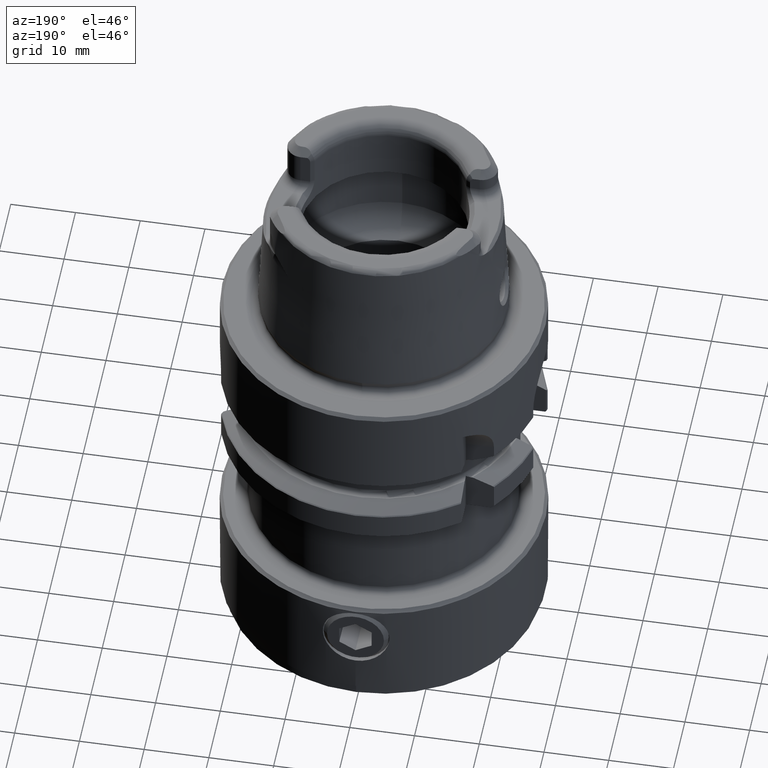
[diagram: clean part render]
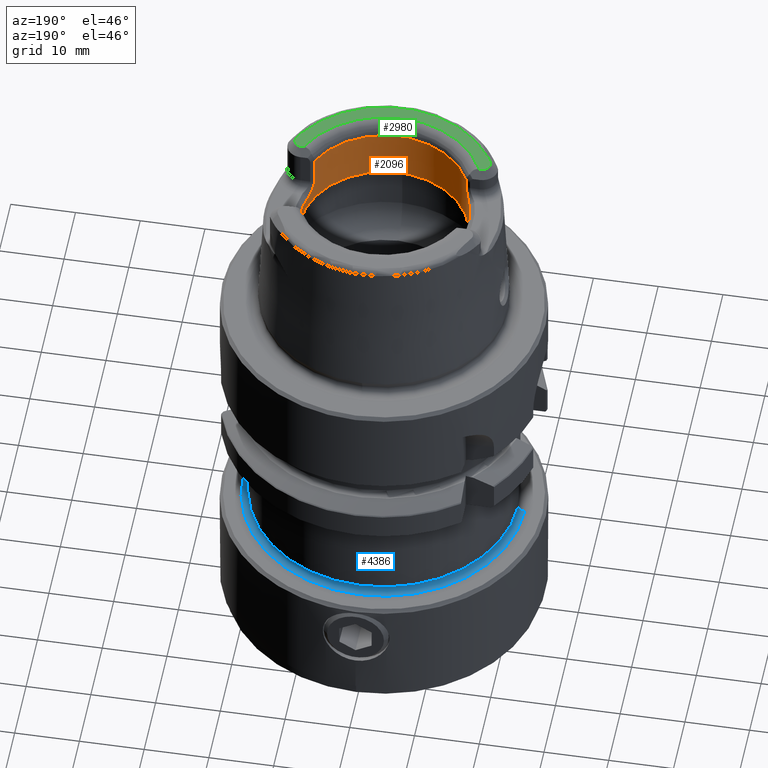
[diagram: same view with three faces highlighted in distinct colors, each labeled with its STEP entity id]
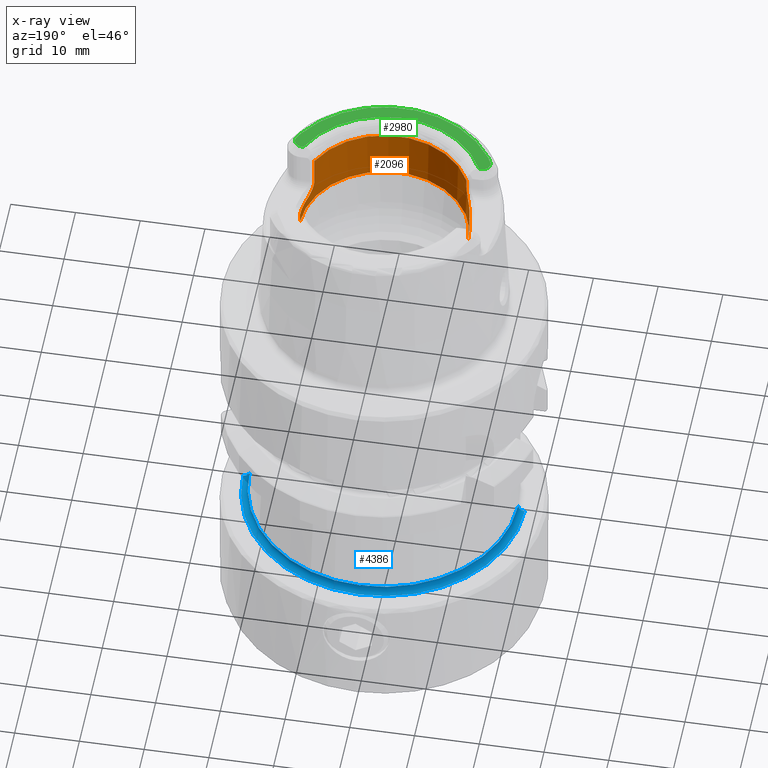
[diagram: x-ray of the same camera — body ghosted, the three highlighted faces saturated]
A machine part, auxiliary view with three faces highlighted in distinct colors.
The next image is the same camera in x-ray (body ghosted, the three faces saturated) — at least one of them is partly hidden behind the body in this view.
Their STEP definitions:

[orange] entity #2096 — the highlighted cylindrical surface (partial cylindrical patch) has radius 13.02 mm, axis along (-0, 0, -1).
#1604=VERTEX_POINT('NONE',#4595);
#1732=EDGE_CURVE('NONE',#4052,#3916,#4727,.T.);
#2036=EDGE_CURVE('NONE',#4440,#4052,#5058,.F.);
#2038=EDGE_CURVE('NONE',#2076,#4276,#5060,.F.);
#2076=VERTEX_POINT('NONE',#5103);
#2096=ADVANCED_FACE('NONE',(#5127),#5128,.F.);
#2266=EDGE_CURVE('NONE',#2396,#4276,#5312,.F.);
#2376=VERTEX_POINT('NONE',#5430);
#2396=VERTEX_POINT('NONE',#5453);
#2440=EDGE_CURVE('NONE',#2376,#2396,#5501,.T.);
#2878=VERTEX_POINT('NONE',#5981);
#3236=VERTEX_POINT('NONE',#6376);
#3252=EDGE_CURVE('NONE',#1604,#4440,#6394,.T.);
#3486=EDGE_CURVE('NONE',#3916,#2878,#6658,.F.);
#3904=EDGE_CURVE('NONE',#3236,#2376,#7125,.F.);
#3906=EDGE_CURVE('NONE',#2076,#1604,#7127,.F.);
#3916=VERTEX_POINT('NONE',#7137);
#4052=VERTEX_POINT('NONE',#7285);
#4226=EDGE_CURVE('NONE',#3236,#2878,#7472,.T.);
#4276=VERTEX_POINT('NONE',#7530);
#4440=VERTEX_POINT('NONE',#7709);
#4595=CARTESIAN_POINT('',(11.7303798066063,-5.64965393566404,18.7));
#4727=LINE('',#8368,#8369);
#5058=CIRCLE('',#9298,13.02);
#5060=CIRCLE('',#9301,13.02);
#5103=CARTESIAN_POINT('',(11.7303798066063,-5.64965393566403,22.9));
#5127=FACE_OUTER_BOUND('',#9454,.T.);
#5128=CYLINDRICAL_SURFACE('',#9455,13.02);
#5312=LINE('',#9864,#9865);
#5430=CARTESIAN_POINT('',(-12.4994746450473,-3.64465822784809,19.495));
#5453=CARTESIAN_POINT('',(-11.7303798066062,-5.64965393566405,21.7));
#5501=B_SPLINE_CURVE_WITH_KNOTS('',3,(#10372,#10373,#10374,#10375,#10376,#10377,#10378,#10379,#10380,#10381,#10382,#10383,#10384,#10385),.UNSPECIFIED.,.F.,.F.,(4,2,2,2,2,2,4),(0.0,0.000422921558412076,0.000845843116824152,0.00169168623364831,0.00253752935047247,0.00296045090888454,0.00338337246729662),.UNSPECIFIED.);
#5981=CARTESIAN_POINT('',(-13.02,-1.75663999721028E-015,14.9758896893005));
#6376=CARTESIAN_POINT('',(-13.02,-1.59449013248985E-015,19.495));
#6394=B_SPLINE_CURVE_WITH_KNOTS('',3,(#12752,#12753,#12754,#12755,#12756,#12757,#12758,#12759,#12760,#12761,#12762,#12763,#12764,#12765),.UNSPECIFIED.,.F.,.F.,(4,2,2,2,2,2,4),(0.0,0.000423807483289232,0.000847614966578463,0.00127142244986769,0.00169522993315693,0.00254284489973539,0.00339045986631385),.UNSPECIFIED.);
#6658=CIRCLE('',#13512,13.02);
#7125=CIRCLE('',#14951,13.02);
#7127=LINE('',#14954,#14955);
#7137=CARTESIAN_POINT('',(13.02,0.0,14.9758896893005));
#7285=CARTESIAN_POINT('',(13.02,0.0,16.495));
#7472=LINE('',#16323,#16324);
#7530=CARTESIAN_POINT('',(-11.7303798066063,-5.64965393566405,22.9));
#7709=CARTESIAN_POINT('',(12.4994746450473,-3.64465822784809,16.495));
#8368=CARTESIAN_POINT('',(13.02,0.0,0.0));
#8369=VECTOR('',#17203,1000.0);
#9298=AXIS2_PLACEMENT_3D('',#17567,#17568,#17569);
#9301=AXIS2_PLACEMENT_3D('',#17570,#17571,#17572);
#9454=EDGE_LOOP('',(#17669,#17670,#17671,#17672,#17673,#17674,#17675,#17676,#17677,#17678));
#9455=AXIS2_PLACEMENT_3D('',#17679,#17680,#17681);
#9864=CARTESIAN_POINT('',(-11.7303798066062,-5.64965393566405,0.0));
#9865=VECTOR('',#17853,1.0);
#10372=CARTESIAN_POINT('',(-12.4994746450473,-3.64465822784809,19.495));
#10373=CARTESIAN_POINT('',(-12.4593070456915,-3.7824143241161,19.4936567960236));
#10374=CARTESIAN_POINT('',(-12.4177615075341,-3.91644627135201,19.5098225495693));
#10375=CARTESIAN_POINT('',(-12.3321732634006,-4.17814011922187,19.5718634027792));
#10376=CARTESIAN_POINT('',(-12.2876478407808,-4.30706426046742,19.6185552470368));
#10377=CARTESIAN_POINT('',(-12.155814004187,-4.67154727119188,19.7954216213728));
#10378=CARTESIAN_POINT('',(-12.0681744409088,-4.89066040015203,19.9640772672454));
#10379=CARTESIAN_POINT('',(-11.9143096413835,-5.25439047417068,20.3682773396175));
#10380=CARTESIAN_POINT('',(-11.8467727881526,-5.40243644465913,20.6087911699131));
#10381=CARTESIAN_POINT('',(-11.7775012917335,-5.55102239064021,20.9985576229875));
#10382=CARTESIAN_POINT('',(-11.7592888632587,-5.58930109453134,21.1359104563778));
#10383=CARTESIAN_POINT('',(-11.7354940104373,-5.63909049633708,21.4152879927284));
#10384=CARTESIAN_POINT('',(-11.7298158976227,-5.65082478021992,21.5567639417051));
#10385=CARTESIAN_POINT('',(-11.7303798066062,-5.64965393566405,21.7));
#12752=CARTESIAN_POINT('',(11.7303798066063,-5.64965393566404,18.7));
#12753=CARTESIAN_POINT('',(11.7297433276299,-5.65097545733889,18.5568041248561));
#12754=CARTESIAN_POINT('',(11.7354194478726,-5.63924450542508,18.415863323853));
#12755=CARTESIAN_POINT('',(11.7590104685246,-5.58988559906202,18.1384368124433));
#12756=CARTESIAN_POINT('',(11.7772218104594,-5.55161889011278,18.0005669935727));
#12757=CARTESIAN_POINT('',(11.8237103949468,-5.45190777345363,17.7391146754305));
#12758=CARTESIAN_POINT('',(11.8518878397048,-5.39067896896175,17.614849662269));
#12759=CARTESIAN_POINT('',(11.9165524937719,-5.24618354373243,17.3785688040968));
#12760=CARTESIAN_POINT('',(11.9529218981065,-5.16311967894297,17.2673680341393));
#12761=CARTESIAN_POINT('',(12.0683031862516,-4.89034202178108,16.9639334681071));
#12762=CARTESIAN_POINT('',(12.1560442176567,-4.67081891841014,16.795002034536));
#12763=CARTESIAN_POINT('',(12.330284368837,-4.18927771505042,16.56043084774));
#12764=CARTESIAN_POINT('',(12.4191476677416,-3.92014222480384,16.491636369051));
#12765=CARTESIAN_POINT('',(12.4994746450473,-3.64465822784809,16.495));
#13512=AXIS2_PLACEMENT_3D('',#19362,#19363,#19364);
#14951=AXIS2_PLACEMENT_3D('',#19958,#19959,#19960);
#14954=CARTESIAN_POINT('',(11.7303798066063,-5.64965393566403,0.0));
#14955=VECTOR('',#19961,1.0);
#16323=CARTESIAN_POINT('',(-13.02,-1.59449013248985E-015,0.0));
#16324=VECTOR('',#20293,1000.0);
#17203=DIRECTION('',(0.0,0.0,-1.0));
#17567=CARTESIAN_POINT('',(0.0,0.0,16.495));
#17568=DIRECTION('',(0.0,0.0,-1.0));
#17569=DIRECTION('',(1.0,0.0,0.0));
#17570=CARTESIAN_POINT('',(0.0,0.0,22.9));
#17571=DIRECTION('',(0.0,-0.0,1.0));
#17572=DIRECTION('',(1.0,0.0,0.0));
#17669=ORIENTED_EDGE('',*,*,#4226,.F.);
#17670=ORIENTED_EDGE('',*,*,#3904,.T.);
#17671=ORIENTED_EDGE('',*,*,#2440,.T.);
#17672=ORIENTED_EDGE('',*,*,#2266,.T.);
#17673=ORIENTED_EDGE('',*,*,#2038,.F.);
#17674=ORIENTED_EDGE('',*,*,#3906,.T.);
#17675=ORIENTED_EDGE('',*,*,#3252,.T.);
#17676=ORIENTED_EDGE('',*,*,#2036,.T.);
#17677=ORIENTED_EDGE('',*,*,#1732,.T.);
#17678=ORIENTED_EDGE('',*,*,#3486,.T.);
#17679=CARTESIAN_POINT('',(0.0,0.0,0.0));
#17680=DIRECTION('',(-0.0,0.0,-1.0));
#17681=DIRECTION('',(1.0,0.0,0.0));
#17853=DIRECTION('',(0.0,0.0,-1.0));
#19362=CARTESIAN_POINT('',(0.0,0.0,14.9758896893005));
#19363=DIRECTION('',(0.0,-0.0,1.0));
#19364=DIRECTION('',(1.0,0.0,0.0));
#19958=CARTESIAN_POINT('',(0.0,0.0,19.495));
#19959=DIRECTION('',(0.0,0.0,-1.0));
#19960=DIRECTION('',(1.0,0.0,0.0));
#19961=DIRECTION('',(0.0,-0.0,1.0));
#20293=DIRECTION('',(0.0,0.0,-1.0));

[blue] entity #4386 — the highlighted toroidal blend (fillet) surface has major radius 21.75 mm and minor (blend) radius 1 mm.
#1646=VERTEX_POINT('NONE',#4639);
#1700=EDGE_CURVE('NONE',#2602,#2188,#4694,.T.);
#1964=VERTEX_POINT('NONE',#4980);
#2188=VERTEX_POINT('NONE',#5226);
#2602=VERTEX_POINT('NONE',#5672);
#3664=EDGE_CURVE('NONE',#2602,#1646,#6860,.F.);
#4354=EDGE_CURVE('NONE',#2188,#1964,#7613,.T.);
#4356=EDGE_CURVE('NONE',#1646,#1964,#7615,.T.);
#4386=ADVANCED_FACE('NONE',(#7650),#7651,.F.);
#4639=CARTESIAN_POINT('',(-20.75,0.0,-41.0));
#4694=CIRCLE('',#8288,1.0);
#4980=CARTESIAN_POINT('',(-21.75,0.0,-42.0));
#5226=CARTESIAN_POINT('',(21.75,-2.66360678814549E-015,-42.0));
#5672=CARTESIAN_POINT('',(20.75,-2.54114210823076E-015,-41.0));
#6860=CIRCLE('',#14282,20.75);
#7613=CIRCLE('',#16749,21.75);
#7615=CIRCLE('',#16752,1.0);
#7650=FACE_OUTER_BOUND('',#16795,.T.);
#7651=TOROIDAL_SURFACE('',#16796,21.75,0.999999999999682);
#8288=AXIS2_PLACEMENT_3D('',#17177,#17178,#17179);
#14282=AXIS2_PLACEMENT_3D('',#19648,#19649,#19650);
#16749=AXIS2_PLACEMENT_3D('',#20442,#20443,#20444);
#16752=AXIS2_PLACEMENT_3D('',#20445,#20446,#20447);
#16795=EDGE_LOOP('',(#20501,#20502,#20503,#20504));
#16796=AXIS2_PLACEMENT_3D('',#20505,#20506,#20507);
#17177=CARTESIAN_POINT('',(21.75,-2.66360678814549E-015,-41.0));
#17178=DIRECTION('',(-1.22464679914735E-016,-1.0,0.0));
#17179=DIRECTION('',(-1.0,1.22464679914735E-016,0.0));
#19648=CARTESIAN_POINT('',(0.0,0.0,-41.0));
#19649=DIRECTION('',(0.0,0.0,-1.0));
#19650=DIRECTION('',(-1.0,0.0,0.0));
#20442=CARTESIAN_POINT('',(0.0,0.0,-42.0));
#20443=DIRECTION('',(0.0,0.0,1.0));
#20444=DIRECTION('',(-1.0,0.0,-0.0));
#20445=CARTESIAN_POINT('',(-21.75,0.0,-41.0));
#20446=DIRECTION('',(0.0,1.0,-0.0));
#20447=DIRECTION('',(1.0,0.0,0.0));
#20501=ORIENTED_EDGE('',*,*,#3664,.F.);
#20502=ORIENTED_EDGE('',*,*,#1700,.T.);
#20503=ORIENTED_EDGE('',*,*,#4354,.T.);
#20504=ORIENTED_EDGE('',*,*,#4356,.F.);
#20505=CARTESIAN_POINT('',(0.0,0.0,-41.0));
#20506=DIRECTION('',(0.0,0.0,1.0));
#20507=DIRECTION('',(-1.0,0.0,0.0));

[green] entity #2980 — the highlighted planar face has unit normal (0, 0, -1).
#1656=EDGE_CURVE('NONE',#4430,#3776,#4649,.F.);
#2010=VERTEX_POINT('NONE',#5032);
#2358=EDGE_CURVE('NONE',#2010,#4430,#5412,.T.);
#2476=EDGE_CURVE('NONE',#4394,#2698,#5538,.T.);
#2544=VERTEX_POINT('NONE',#5611);
#2698=VERTEX_POINT('NONE',#5780);
#2872=EDGE_CURVE('NONE',#3422,#2544,#5975,.T.);
#2980=ADVANCED_FACE('NONE',(#6086),#6087,.F.);
#3422=VERTEX_POINT('NONE',#6585);
#3438=EDGE_CURVE('NONE',#2544,#4394,#6603,.F.);
#3578=EDGE_CURVE('NONE',#3912,#3422,#6766,.F.);
#3604=EDGE_CURVE('NONE',#3912,#2010,#6792,.T.);
#3776=VERTEX_POINT('NONE',#6984);
#3912=VERTEX_POINT('NONE',#7133);
#4378=EDGE_CURVE('NONE',#3776,#2698,#7640,.T.);
#4394=VERTEX_POINT('NONE',#7659);
#4430=VERTEX_POINT('NONE',#7698);
#4649=CIRCLE('',#8179,1.22999999999999);
#5032=CARTESIAN_POINT('',(-13.5788070168185,-6.42000000000001,24.9));
#5412=LINE('',#10171,#10172);
#5538=CIRCLE('',#10435,17.0853539879373);
#5611=CARTESIAN_POINT('',(14.9317677964532,-8.2445343661398,24.9));
#5780=CARTESIAN_POINT('',(-14.4534392705564,-9.11084047415299,24.9));
#5975=CIRCLE('',#11520,1.22999999999999);
#6086=FACE_OUTER_BOUND('',#11818,.T.);
#6087=PLANE('',#11819);
#6585=CARTESIAN_POINT('',(13.855,-6.42000000000001,24.9));
#6603=LINE('',#13305,#13306);
#6766=LINE('',#13981,#13982);
#6792=CIRCLE('',#14018,15.02);
#6984=CARTESIAN_POINT('',(-14.9317677964532,-8.24453436613981,24.9));
#7133=CARTESIAN_POINT('',(13.5788070168185,-6.42,24.9));
#7640=LINE('',#16783,#16784);
#7659=CARTESIAN_POINT('',(14.4534392705564,-9.11084047415299,24.9));
#7698=CARTESIAN_POINT('',(-13.855,-6.42000000000001,24.9));
#8179=AXIS2_PLACEMENT_3D('',#17148,#17149,#17150);
#10171=CARTESIAN_POINT('',(-2.18316502115622,-6.42000000000001,24.9));
#10172=VECTOR('',#17946,1.0);
#10435=AXIS2_PLACEMENT_3D('',#18051,#18052,#18053);
#11520=AXIS2_PLACEMENT_3D('',#18522,#18523,#18524);
#11818=EDGE_LOOP('',(#18593,#18594,#18595,#18596,#18597,#18598,#18599,#18600));
#11819=AXIS2_PLACEMENT_3D('',#18601,#18602,#18603);
#13305=CARTESIAN_POINT('',(11.2220120566875,-14.9633142059378,24.9));
#13306=VECTOR('',#19271,1.0);
#13981=CARTESIAN_POINT('',(2.18316502115622,-6.42000000000001,24.9));
#13982=VECTOR('',#19529,1.0);
#14018=AXIS2_PLACEMENT_3D('',#19542,#19543,#19544);
#16783=CARTESIAN_POINT('',(-11.2220120566875,-14.9633142059378,24.9));
#16784=VECTOR('',#20478,1.0);
#17148=CARTESIAN_POINT('',(-13.855,-7.65,24.9));
#17149=DIRECTION('',(0.0,5.03205941042292E-020,-1.0));
#17150=DIRECTION('',(0.0,-1.0,-5.03205941042292E-020));
#17946=DIRECTION('',(-1.0,-2.7423076422392E-016,-1.37994549774044E-035));
#18051=CARTESIAN_POINT('',(0.0,-5.03205941042292E-020,24.9));
#18052=DIRECTION('',(0.0,5.03205941042292E-020,-1.0));
#18053=DIRECTION('',(1.0,0.0,0.0));
#18522=CARTESIAN_POINT('',(13.855,-7.65,24.9));
#18523=DIRECTION('',(0.0,5.03205941042292E-020,-1.0));
#18524=DIRECTION('',(0.0,-1.0,-5.03205941042292E-020));
#18593=ORIENTED_EDGE('',*,*,#3578,.F.);
#18594=ORIENTED_EDGE('',*,*,#3604,.T.);
#18595=ORIENTED_EDGE('',*,*,#2358,.T.);
#18596=ORIENTED_EDGE('',*,*,#1656,.T.);
#18597=ORIENTED_EDGE('',*,*,#4378,.T.);
#18598=ORIENTED_EDGE('',*,*,#2476,.F.);
#18599=ORIENTED_EDGE('',*,*,#3438,.F.);
#18600=ORIENTED_EDGE('',*,*,#2872,.F.);
#18601=CARTESIAN_POINT('',(0.0,-17.5342224597055,24.9));
#18602=DIRECTION('',(0.0,5.03205941042292E-020,-1.0));
#18603=DIRECTION('',(-1.0,0.0,0.0));
#19271=DIRECTION('',(0.4833612732844,0.875420972726199,4.40517034388845E-020));
#19529=DIRECTION('',(-1.0,2.7423076422392E-016,1.37994549774044E-035));
#19542=CARTESIAN_POINT('',(0.0,-1.00641188208459E-019,24.9));
#19543=DIRECTION('',(0.0,5.03205941042292E-020,-1.0));
#19544=DIRECTION('',(1.0,0.0,0.0));
#20478=DIRECTION('',(0.4833612732844,-0.875420972726199,-4.40517034388845E-020));